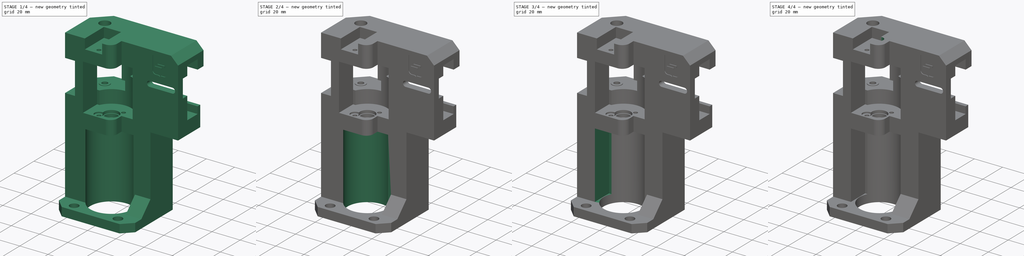
[diagram: build sequence overview — one tinted view per stage of 4, left to right]
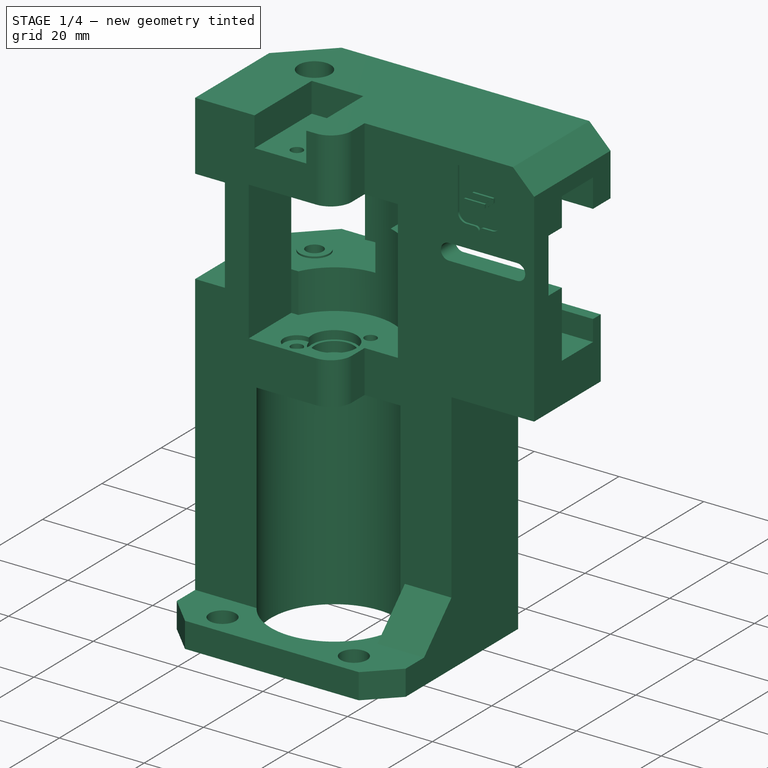
[diagram: stage 1 of 4 — iso view after this stage's code; geometry added in this stage tinted green]
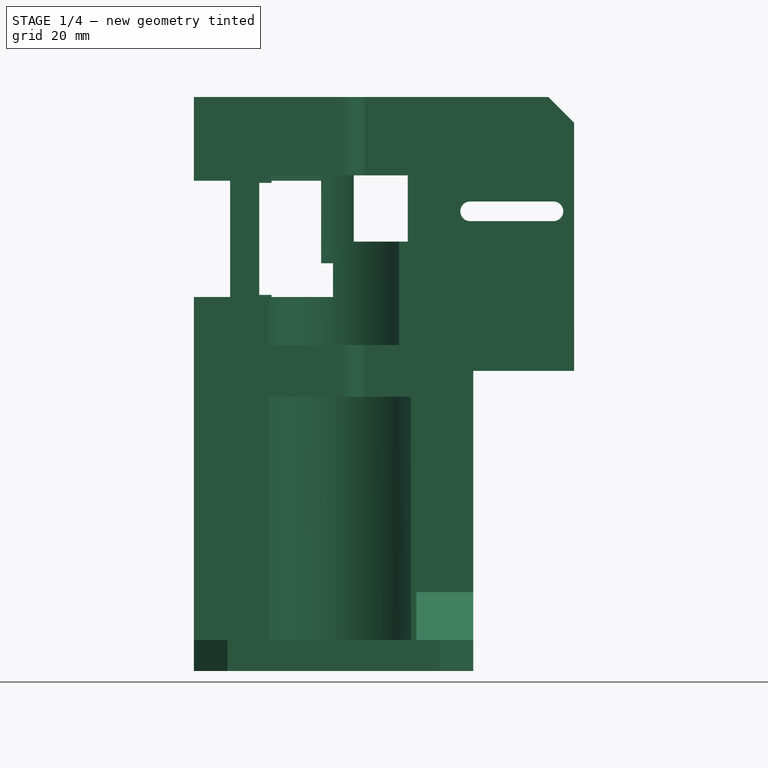
[diagram: stage 1 of 4 — front view after this stage's code; geometry added in this stage tinted green]
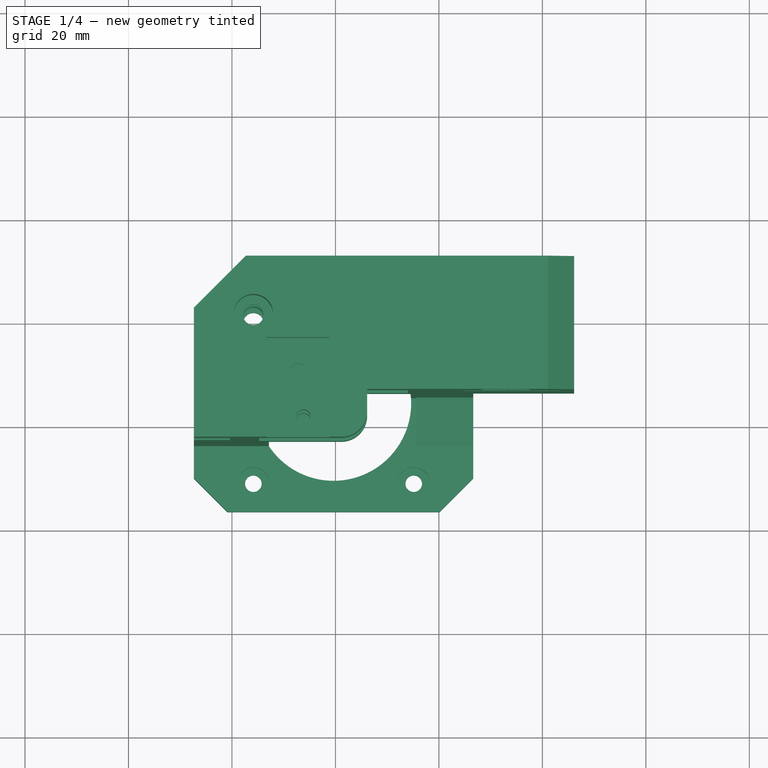
[diagram: stage 1 of 4 — top view after this stage's code; geometry added in this stage tinted green]
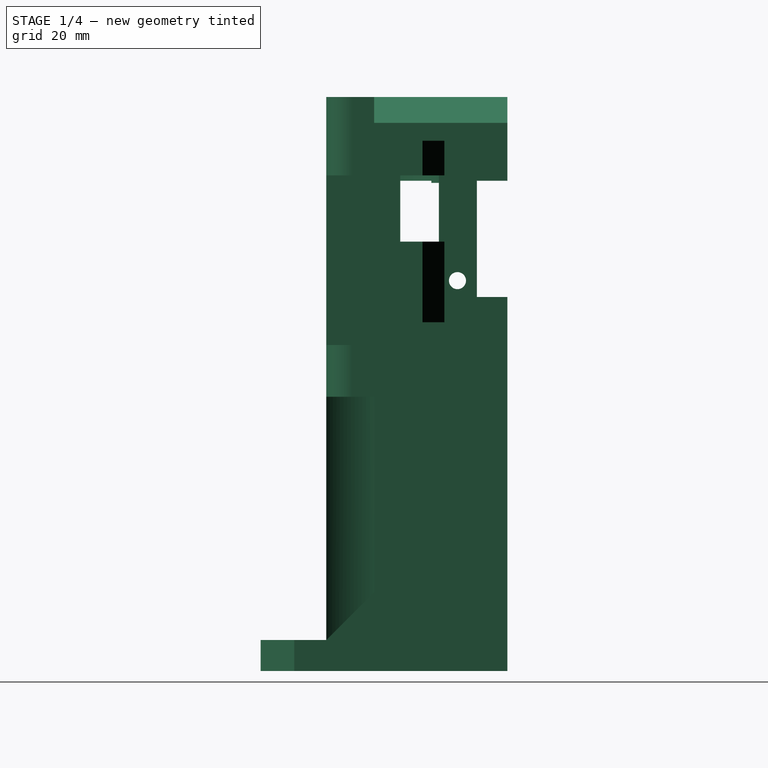
[diagram: stage 1 of 4 — right view after this stage's code; geometry added in this stage tinted green]
FCSTD DOCUMENT  (FreeCAD 1.0R38641 +468 (Git))
Label: k1_motor_mount_stock_left
License: All rights reserved
LicenseURL: https://en.wikipedia.org/wiki/All_rights_reserved
objects: App::Link×9, PartDesign::Pocket×6, Sketcher::SketchObject×5, PartDesign::Pad×2, Part::Feature×1, PartDesign::FeatureBase×1, PartDesign::Body×1, App::Part×1
note: 38 computed .brp shape members not serialized (recipe doc carries the construction recipe); baked Part::Feature solids carry a one-line shape summary decoded from their .brp
EXTERNAL_REF file=cad_powge_pulley.FCStd obj=Part
EXTERNAL_REF file=cad_mf95zz.FCStd obj=Body
EXTERNAL_REF file=cad_motor_shaft_55mm.FCStd obj=Part__Feature
EXTERNAL_REF file=cad_20T_15mm_pulley.FCStd obj=Part
EXTERNAL_REF file=cad_nema17_42_60.FCStd obj=COMPOUND049
EXTERNAL_REF file=cad_diaphragm_coupler.FCStd obj=_764K239_NO_THREADS_Servomotor_Precision_Flexible_Shaft_Coupling013
EXTERNAL_REF file=cad_m4_35mm.FCStd obj=Part__Feature

FEATURE [Part::Feature] Part__Feature  label="step"
  shape: bbox 73.5 x 47.7 x 110.9 mm, 153 faces (baked)
FEATURE [PartDesign::FeatureBase] BaseFeature
  BaseFeature = -> Part__Feature
  Suppressed = false
FEATURE [App::Link] Link  label="cad_powge_pulley_top_link"
  LinkPlacement = pos=(14.1406,100.078,20.85) rot=(0,0,1;0rad)
  LinkedObject = -> <external cad_powge_pulley.FCStd>#Part
  Placement = pos=(14.1406,100.078,20.85) rot=(0,0,1;0rad)
FEATURE [App::Link] Link001  label="cad_powge_pulley_bottom_link"
  LinkPlacement = pos=(14.1406,100.078,9.7) rot=(0,0,1;0rad)
  LinkedObject = -> <external cad_powge_pulley.FCStd>#Part
  Placement = pos=(14.1406,100.078,9.7) rot=(0,0,1;0rad)
FEATURE [App::Link] Link002  label="cad_mf95zz_top_link"
  LinkPlacement = pos=(29.6406,84.5783,37.2) rot=(0,1,0;3.14159rad)
  LinkedObject = -> <external cad_mf95zz.FCStd>#Body
  Placement = pos=(29.6406,84.5783,37.2) rot=(0,1,0;3.14159rad)
FEATURE [App::Link] Link003  label="cad_mf95zz_bottom_link"
  LinkPlacement = pos=(29.6406,84.5783,-4.4) rot=(0,0,1;3.14159rad)
  LinkedObject = -> <external cad_mf95zz.FCStd>#Body
  Placement = pos=(29.6406,84.5783,-4.4) rot=(0,0,1;3.14159rad)
FEATURE [App::Link] Link004  label="cad_motor_shaft_55mm_link"
  LinkPlacement = pos=(370.445,-290.422,175.11) rot=(0,0,1;0rad)
  LinkedObject = -> <external cad_motor_shaft_55mm.FCStd>#Part__Feature
  Placement = pos=(370.445,-290.422,175.11) rot=(0,0,1;0rad)
FEATURE [App::Link] Link005  label="cad_20T_15mm_pulley_link"
  LinkPlacement = pos=(117.263,15.5011,1.55198) rot=(0,1,0;3.14159rad)
  LinkedObject = -> <external cad_20T_15mm_pulley.FCStd>#Part
  Placement = pos=(117.263,15.5011,1.55198) rot=(0,1,0;3.14159rad)
FEATURE [App::Link] Link006  label="cad_nema17_42_60_link"
  LinkPlacement = pos=(29.6406,84.5783,-79.702) rot=(0,0,1;0rad)
  LinkedObject = -> <external cad_nema17_42_60.FCStd>#COMPOUND049
  Placement = pos=(29.6406,84.5783,-79.702) rot=(0,0,1;0rad)
FEATURE [App::Link] Link007  label="cad_diaphragm_coupler_5_5_link"
  LinkPlacement = pos=(370.37,-290.416,168.405) rot=(0,0,1;0rad)
  LinkedObject = -> <external cad_diaphragm_coupler.FCStd>#_764K239_NO_THREADS_Servomotor_Precision_Flexible_Shaft_Coupling013
  Placement = pos=(370.37,-290.416,168.405) rot=(0,0,1;0rad)
FEATURE [App::Link] Link008  label="cad_m4_35mm_link"
  LinkPlacement = pos=(14.1406,100.078,0.376278) rot=(0,0,1;0rad)
  LinkedObject = -> <external cad_m4_35mm.FCStd>#Part__Feature
  Placement = pos=(14.1406,100.078,0.376278) rot=(0,0,1;0rad)
FEATURE [Sketcher::SketchObject] Sketch
  ArcFitTolerance = 1e-06
  AttachmentSupport = -> [BaseFeature]
  ExternalGeometry = -> [BaseFeature]
  FullyConstrained = true
  MakeInternals = false
  MapMode = 5
  Placement = pos=(8.1168e-12,-2.90335e-11,-57) rot=(0,0,1;0rad)
  sketch-geometry (6):
    g0: LineSegment StartX=52.6406 StartY=970.078 StartZ=0 EndX=59.1406 EndY=963.578 EndZ=0
    g1: LineSegment StartX=100.141 StartY=963.578 StartZ=0 EndX=106.641 EndY=970.078 EndZ=0
    g2: LineSegment StartX=106.641 StartY=970.078 StartZ=0 EndX=106.641 EndY=963.578 EndZ=0
    g3: LineSegment StartX=100.141 StartY=963.578 StartZ=0 EndX=106.641 EndY=963.578 EndZ=0
    g4: LineSegment StartX=52.6406 StartY=970.078 StartZ=0 EndX=52.6406 EndY=963.578 EndZ=0
    g5: LineSegment StartX=59.1406 StartY=963.578 StartZ=0 EndX=52.6406 EndY=963.578 EndZ=0
  constraints (14):
    c: Coincident(g0,g-3)
    c: Coincident(g0,g-4)
    c: Coincident(g1,g-4)
    c: Coincident(g1,g-5)
    c: Coincident(g2,g1)
    c: Vertical(g2)
    c: Coincident(g3,g1)
    c: Coincident(g3,g2)
    c: Horizontal(g3)
    c: Coincident(g4,g0)
    c: Vertical(g4)
    c: Coincident(g5,g0)
    c: Coincident(g5,g4)
    c: Horizontal(g5)
FEATURE [PartDesign::Pocket] Pocket
  BaseFeature = -> BaseFeature
  Direction = (1.424e-13,-5.094e-13,-1)
  Length = 6
  Length2 = 5
  Profile = -> Sketch
  ReferenceAxis = -> Sketch [N_Axis]
  Refine = true
  Suppressed = false
  Type = 0
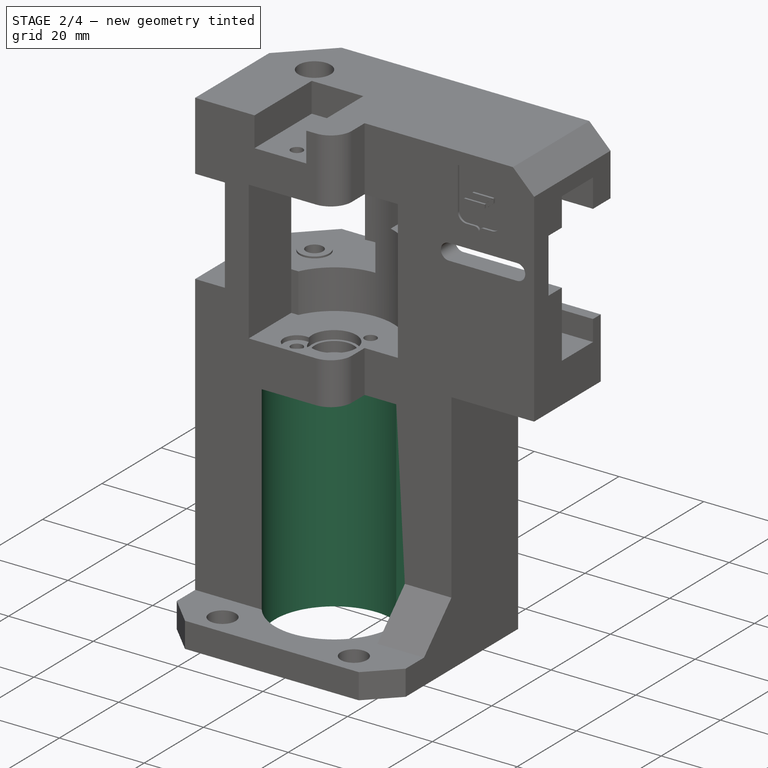
[diagram: stage 2 of 4 — iso view after this stage's code; geometry added in this stage tinted green]
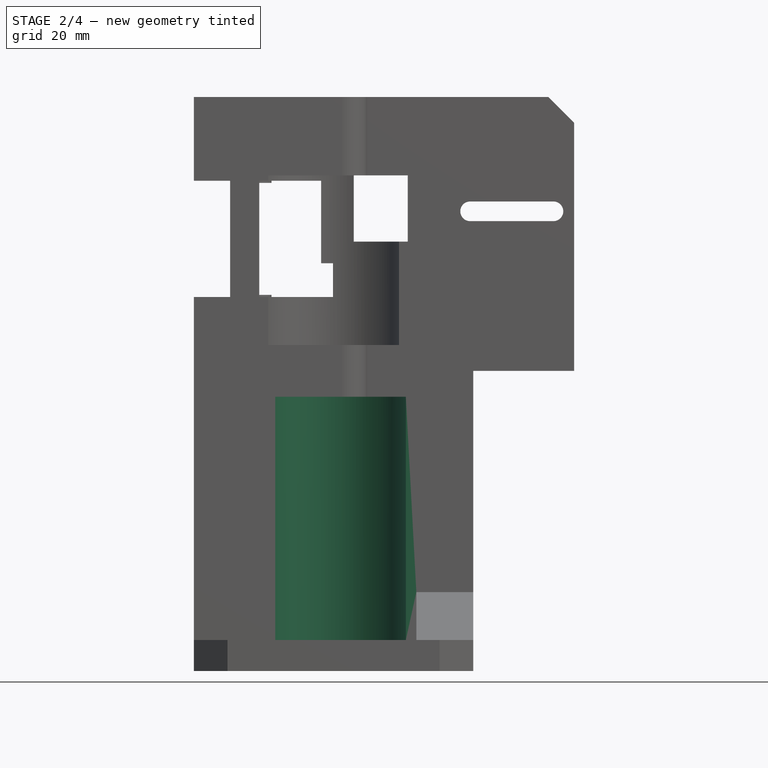
[diagram: stage 2 of 4 — front view after this stage's code; geometry added in this stage tinted green]
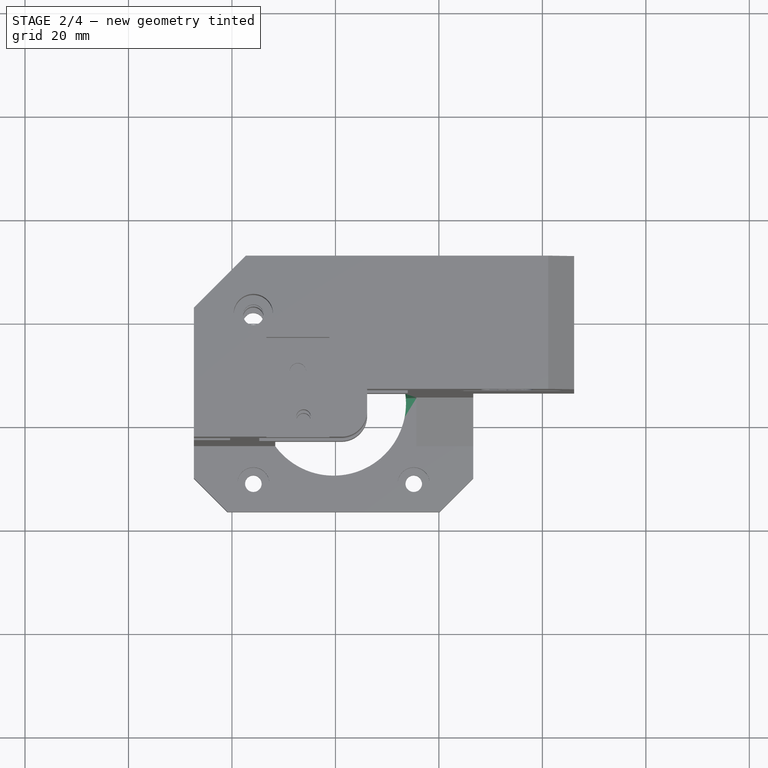
[diagram: stage 2 of 4 — top view after this stage's code; geometry added in this stage tinted green]
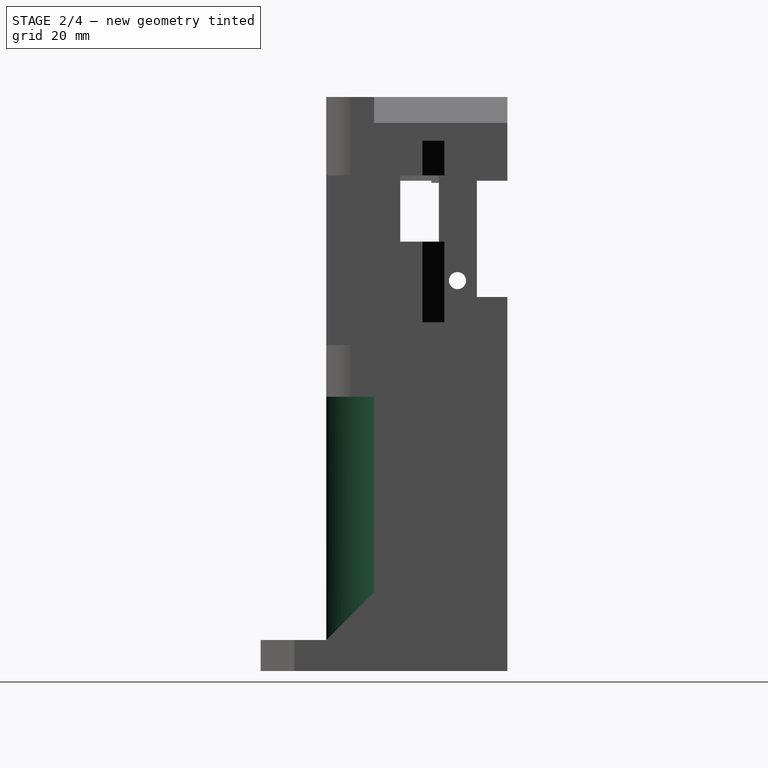
[diagram: stage 2 of 4 — right view after this stage's code; geometry added in this stage tinted green]
FEATURE [Sketcher::SketchObject] Sketch001
  ArcFitTolerance = 1e-06
  AttachmentSupport = -> [Pocket]
  ExternalGeometry = -> [Pocket]
  FullyConstrained = true
  MakeInternals = false
  MapMode = 5
  Placement = pos=(4.7e-13,-2.35e-13,-63) rot=(1,0,0;3.14159rad)
  sketch-geometry (2):
    g0: Circle CenterX=79.6406 CenterY=-984.578 CenterZ=0 NormalX=0 NormalY=0 NormalZ=1 AngleXU=0 Radius=15
    g1: Circle CenterX=79.6406 CenterY=-984.578 CenterZ=0 NormalX=0 NormalY=0 NormalZ=1 AngleXU=0 Radius=14
  constraints (4):
    c: Coincident(g0,g-3)
    c: Equal(g0,g-3)
    c: Coincident(g1,g0)
    c: Diameter(g1) = 28
FEATURE [PartDesign::Pad] Pad
  BaseFeature = -> Pocket
  Direction = (7.5e-15,-3.7e-15,-1)
  Length = 10
  Length2 = 10
  Profile = -> Sketch001
  ReferenceAxis = -> Sketch001 [N_Axis]
  Refine = true
  Suppressed = false
  Type = 3
  UpToFace = -> Pocket [Face9]
FEATURE [PartDesign::Pocket] Pocket001
  BaseFeature = -> Pad
  Direction = (7e-15,-2.3e-15,-1)
  Length = 0
  Length2 = 5
  Profile = -> Pad [Face8]
  Refine = true
  Suppressed = false
  Type = 3
  UpToFace = -> Pad [Face7]
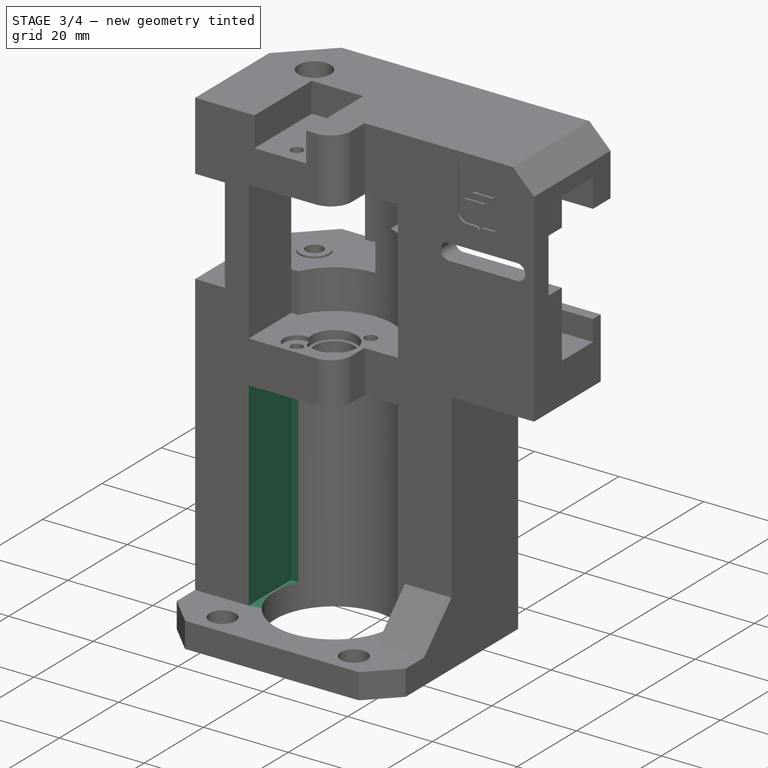
[diagram: stage 3 of 4 — iso view after this stage's code; geometry added in this stage tinted green]
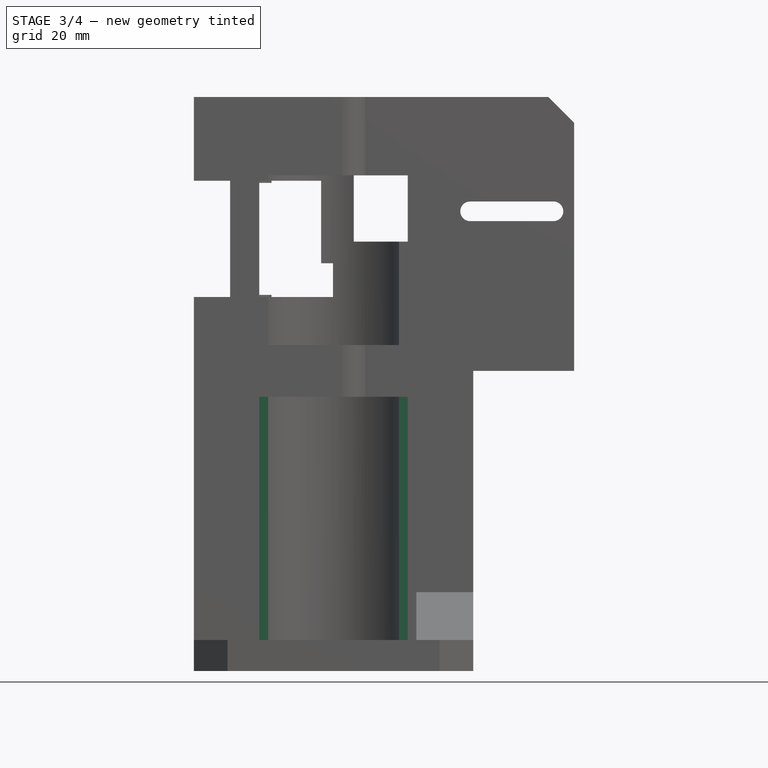
[diagram: stage 3 of 4 — front view after this stage's code; geometry added in this stage tinted green]
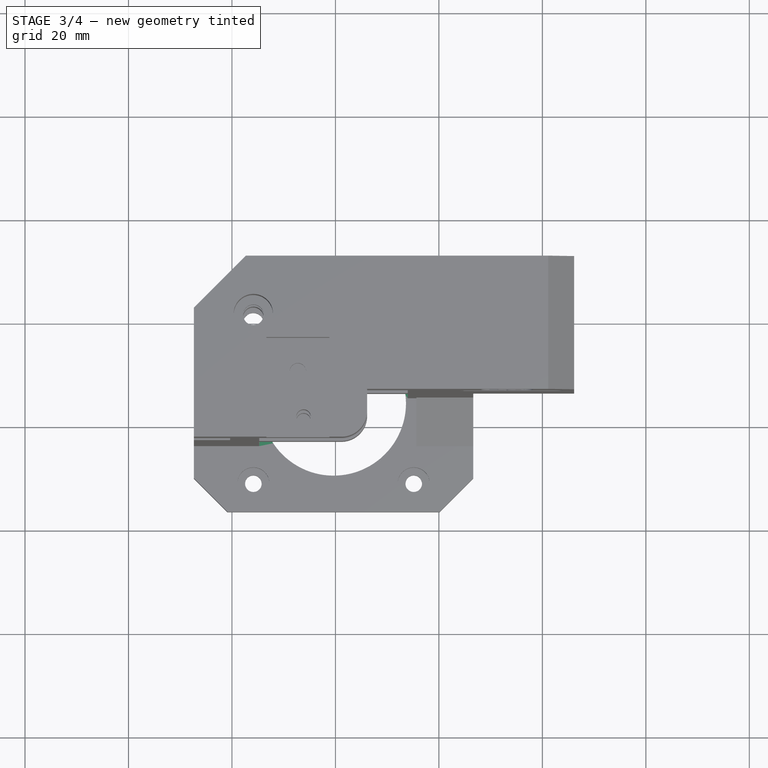
[diagram: stage 3 of 4 — top view after this stage's code; geometry added in this stage tinted green]
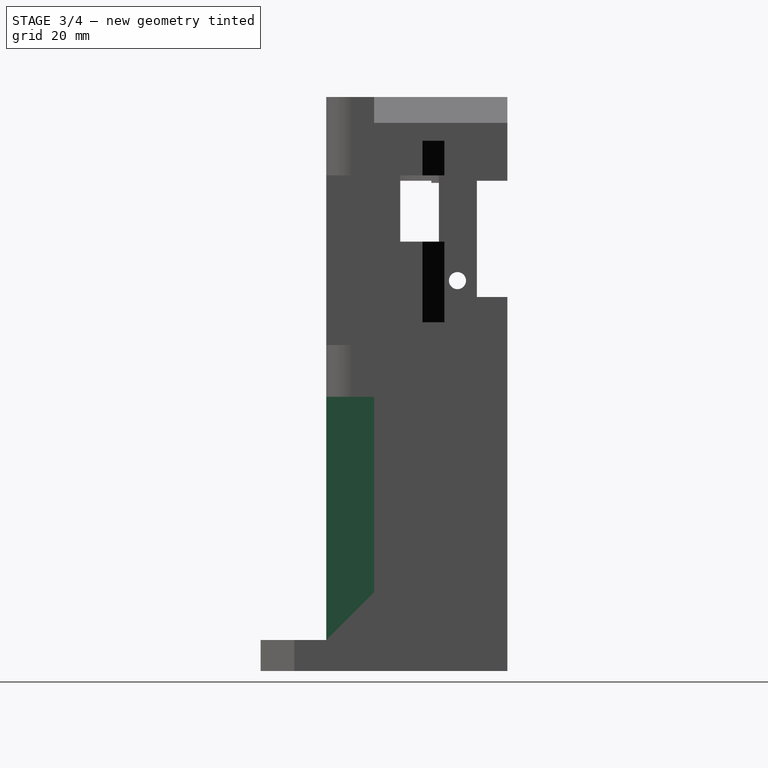
[diagram: stage 3 of 4 — right view after this stage's code; geometry added in this stage tinted green]
FEATURE [Sketcher::SketchObject] Sketch002
  ArcFitTolerance = 1e-06
  AttachmentSupport = -> [Pocket001]
  ExternalGeometry = -> [Pocket001]
  FullyConstrained = true
  MakeInternals = false
  MapMode = 5
  Placement = pos=(1.5407e-12,-1.06128e-11,-57) rot=(0,0,1;0rad)
  sketch-geometry (4):
    g0: LineSegment StartX=79.6406 StartY=984.578 StartZ=0 EndX=65.6406 EndY=984.578 EndZ=0
    g1: LineSegment StartX=65.6406 StartY=984.578 StartZ=0 EndX=65.6406 EndY=976.278 EndZ=0
    g2: LineSegment StartX=65.6406 StartY=976.278 StartZ=0 EndX=79.6406 EndY=976.278 EndZ=0
    g3: LineSegment StartX=79.6406 StartY=976.278 StartZ=0 EndX=79.6406 EndY=984.578 EndZ=0
  constraints (11):
    c: Coincident(g0,g1)
    c: Coincident(g1,g2)
    c: Coincident(g2,g3)
    c: Coincident(g3,g0)
    c: Horizontal(g0)
    c: Horizontal(g2)
    c: Vertical(g1)
    c: Vertical(g3)
    c: Coincident(g0,g-4)
    c: PointOnObject(g1,g-3)
    c: Tangent(g1,g-4)
FEATURE [PartDesign::Pocket] Pocket002
  BaseFeature = -> Pocket001
  Direction = (2.7e-14,-1.862e-13,-1)
  Length = 0
  Length2 = 5
  Profile = -> Sketch002
  ReferenceAxis = -> Sketch002 [N_Axis]
  Refine = true
  Suppressed = false
  Type = 3
  UpToFace = -> Pocket001 [Face8]
FEATURE [Sketcher::SketchObject] Sketch003
  ArcFitTolerance = 1e-06
  AttachmentSupport = -> [Pocket002]
  ExternalGeometry = -> [Pocket002]
  FullyConstrained = true
  MakeInternals = false
  MapMode = 5
  Placement = pos=(2.15318e-10,976.278,-3.51773e-10) rot=(1,0,0;1.5708rad)
  sketch-geometry (4):
    g0: LineSegment StartX=81.1406 StartY=-10 StartZ=0 EndX=65.2906 EndY=-10 EndZ=0
    g1: LineSegment StartX=65.2906 StartY=-10 StartZ=0 EndX=65.2906 EndY=-57 EndZ=0
    g2: LineSegment StartX=65.2906 StartY=-57 StartZ=0 EndX=81.1406 EndY=-57 EndZ=0
    g3: LineSegment StartX=81.1406 StartY=-57 StartZ=0 EndX=81.1406 EndY=-10 EndZ=0
  constraints (11):
    c: Coincident(g0,g1)
    c: Coincident(g1,g2)
    c: Coincident(g2,g3)
    c: Coincident(g3,g0)
    c: Horizontal(g0)
    c: Horizontal(g2)
    c: Vertical(g1)
    c: Vertical(g3)
    c: Coincident(g0,g-4)
    c: PointOnObject(g1,g-5)
    c: PointOnObject(g0,g-3)
FEATURE [PartDesign::Pocket] Pocket003
  BaseFeature = -> Pocket002
  Direction = (2.205e-13,1,-3.604e-13)
  Length = 0
  Length2 = 5
  Profile = -> Sketch003
  ReferenceAxis = -> Sketch003 [N_Axis]
  Refine = true
  Suppressed = false
  Type = 3
  UpToFace = -> Pocket002 [Face84]
FEATURE [Sketcher::SketchObject] Sketch004
  ArcFitTolerance = 1e-06
  AttachmentSupport = -> [Pocket003]
  ExternalGeometry = -> [Pocket003]
  FullyConstrained = true
  MakeInternals = false
  MapMode = 5
  Placement = pos=(-3.6022e-10,985.528,-2.02575e-10) rot=(1,0,0;1.5708rad)
  sketch-geometry (4):
    g0: LineSegment StartX=86.1406 StartY=-10 StartZ=0 EndX=86.1406 EndY=-57 EndZ=0
    g1: LineSegment StartX=86.1406 StartY=-57 StartZ=0 EndX=93.9906 EndY=-57 EndZ=0
    g2: LineSegment StartX=93.9906 StartY=-57 StartZ=0 EndX=93.9906 EndY=-10 EndZ=0
    g3: LineSegment StartX=93.9906 StartY=-10 StartZ=0 EndX=86.1406 EndY=-10 EndZ=0
  constraints (11):
    c: Coincident(g0,g1)
    c: Coincident(g1,g2)
    c: Coincident(g2,g3)
    c: Coincident(g3,g0)
    c: Vertical(g0)
    c: Vertical(g2)
    c: Horizontal(g1)
    c: Horizontal(g3)
    c: Coincident(g0,g-4)
    c: PointOnObject(g1,g-5)
    c: PointOnObject(g2,g-3)
FEATURE [PartDesign::Pocket] Pocket004
  BaseFeature = -> Pocket003
  Direction = (-3.655e-13,1,-2.056e-13)
  Length = 0
  Length2 = 5
  Profile = -> Sketch004
  ReferenceAxis = -> Sketch004 [N_Axis]
  Refine = true
  Suppressed = false
  Type = 3
  UpToFace = -> Pocket003 [Face53]
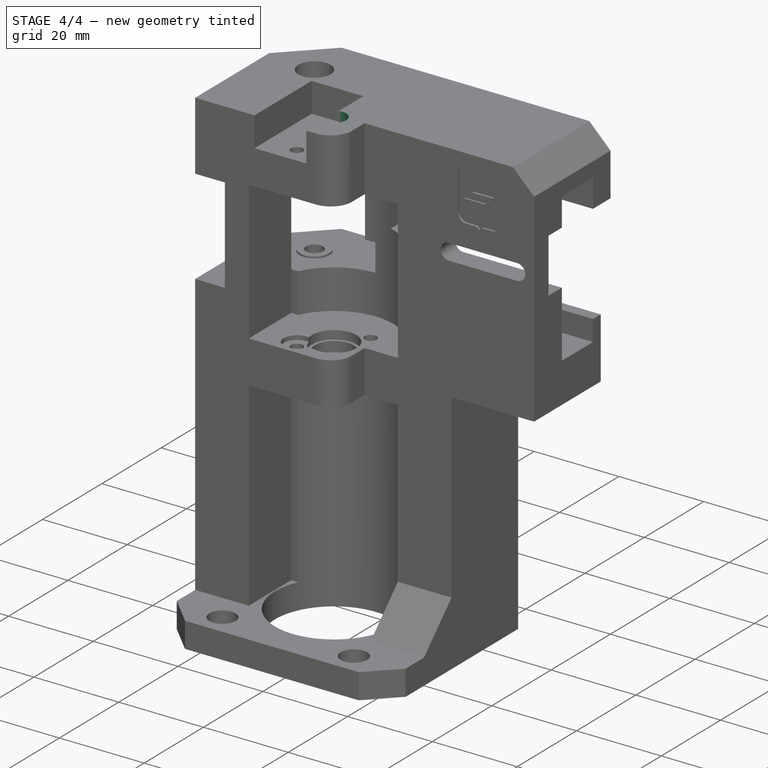
[diagram: stage 4 of 4 — iso view after this stage's code; geometry added in this stage tinted green]
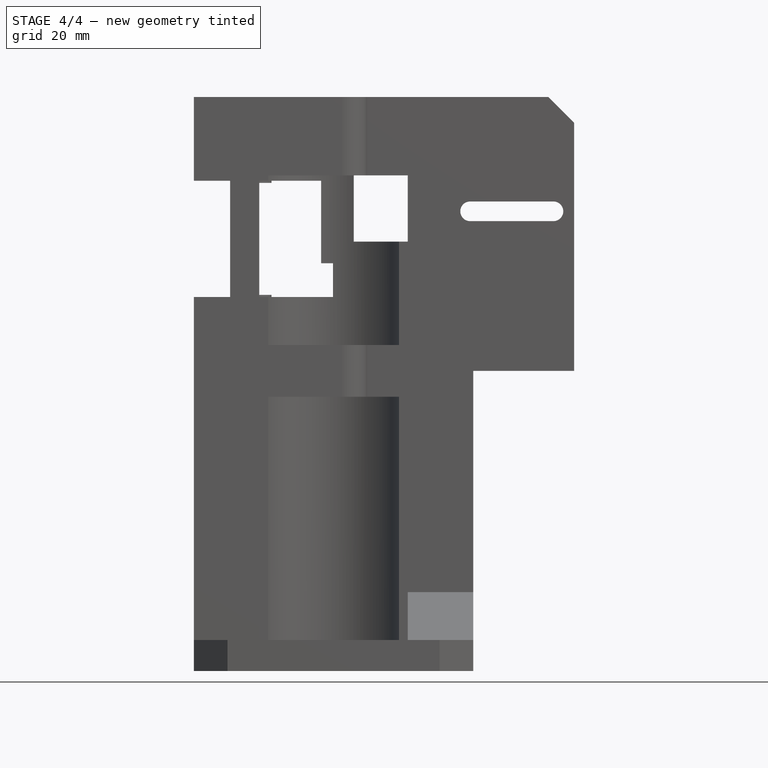
[diagram: stage 4 of 4 — front view after this stage's code; geometry added in this stage tinted green]
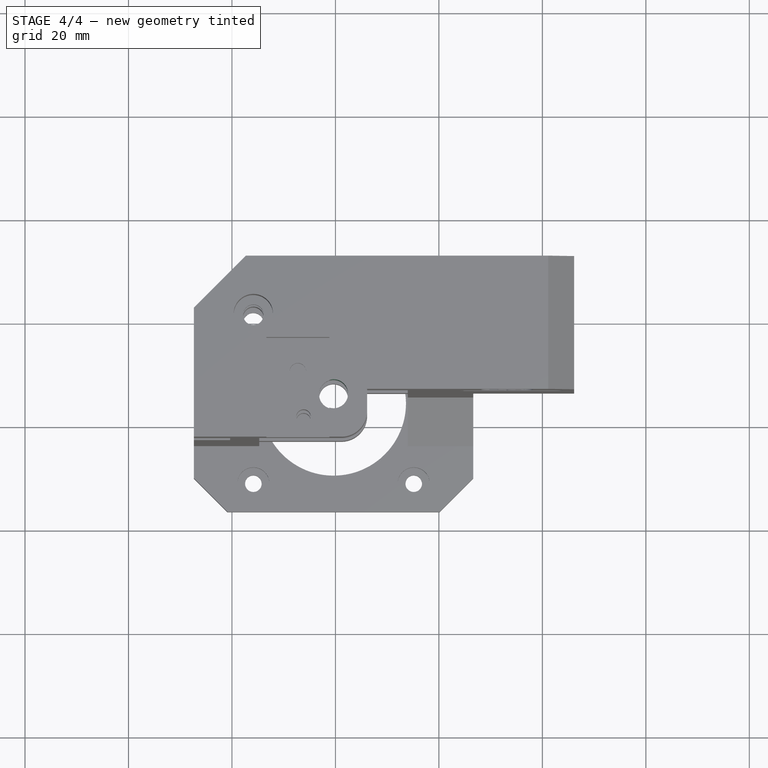
[diagram: stage 4 of 4 — top view after this stage's code; geometry added in this stage tinted green]
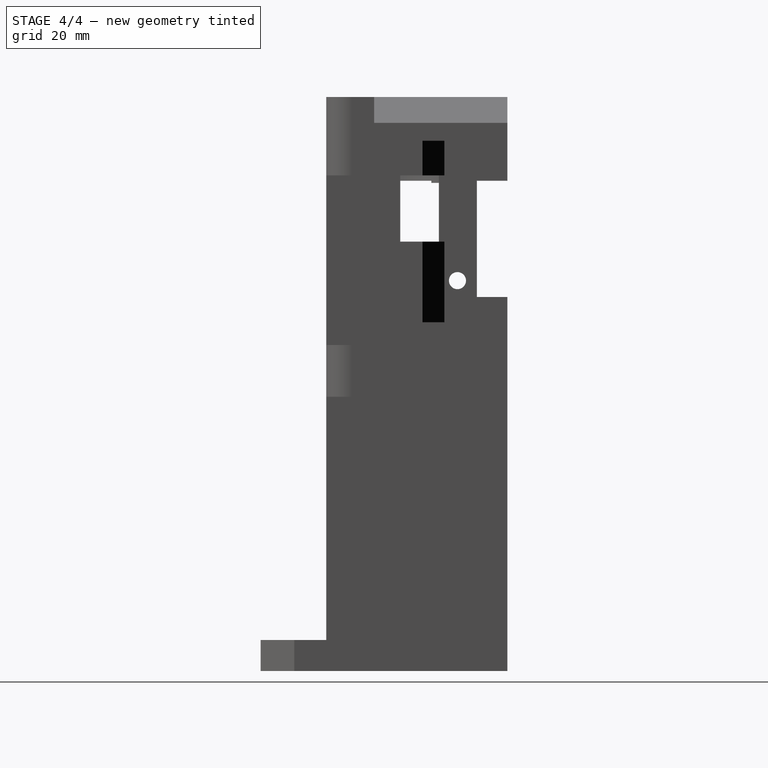
[diagram: stage 4 of 4 — right view after this stage's code; geometry added in this stage tinted green]
FEATURE [PartDesign::Pad] Pad001
  BaseFeature = -> Pocket004
  Direction = (-1,0,-7.7e-15)
  Length = 10
  Length2 = 10
  Profile = -> Pocket004 [Face14]
  Refine = true
  Suppressed = false
  Type = 3
  UpToFace = -> Pocket004 [Face44]
FEATURE [PartDesign::Pocket] Pocket005
  BaseFeature = -> Pad001
  Direction = (2e-16,4.8e-15,1)
  Length = 5
  Length2 = 5
  Profile = -> Pad001 [Face154]
  Refine = true
  Suppressed = false
  Type = 1
FEATURE [PartDesign::Body] Body  label="k1_motor_mount_stock_left"
  AllowCompound = false
  BaseFeature = -> Part__Feature
  Group = -> [BaseFeature,Sketch,Pocket,Sketch001,Pad,Pocket001,Sketch002,Pocket002,Sketch003,Pocket003,Sketch004,Pocket004,Pad001,Pocket005]
  Origin = -> Origin
  Placement = pos=(-50,-900,0) rot=(0,0,1;0rad)
  Tip = -> Pocket005
FEATURE [App::Part] Part  label="k1_motor_mount_stock_left_part"
  Group = -> [Part__Feature,Body,Link,Link001,Link002,Link003,Link004,Link005,Link006,Link007,Link008]
  Origin = -> Origin001
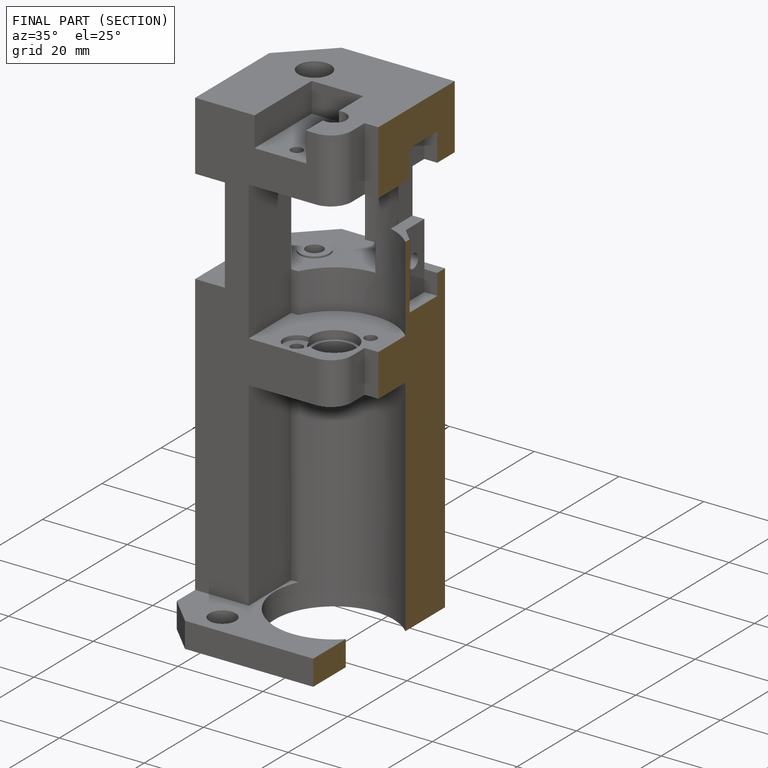
[diagram: finished part — half-section view (interior)]
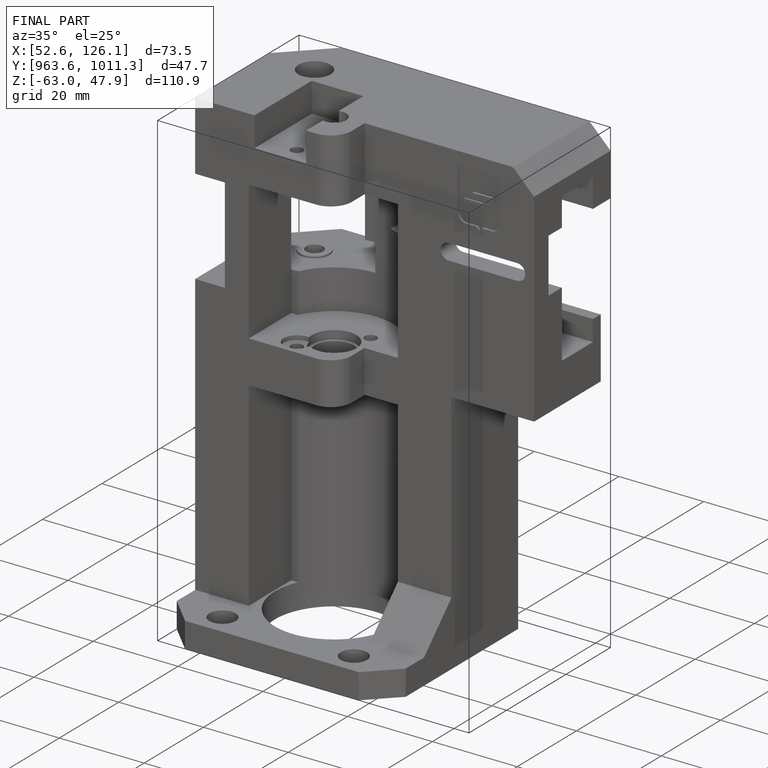
[diagram: finished part — iso view with bounding-box wireframe]
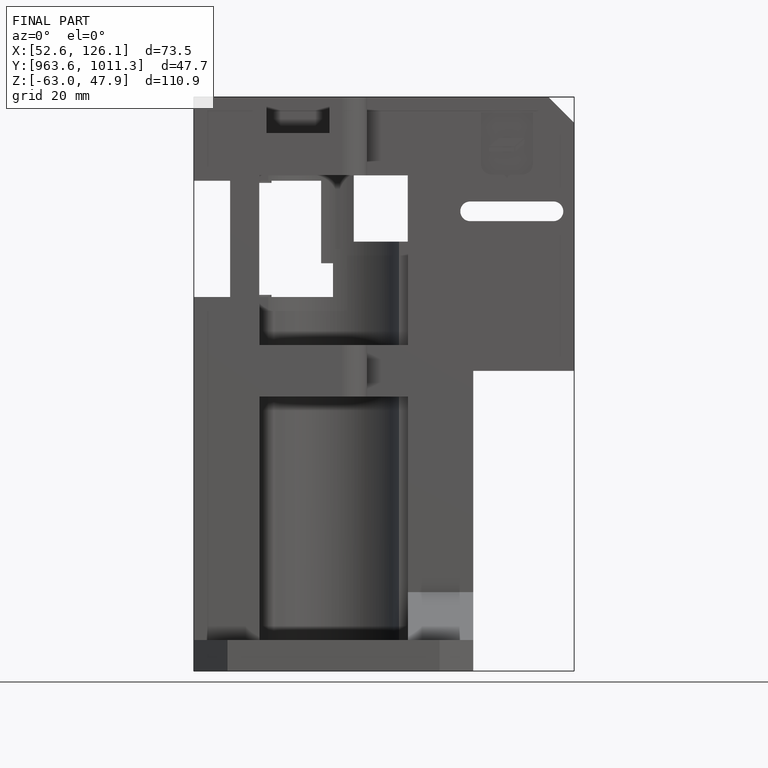
[diagram: finished part — front view with bounding-box wireframe]
